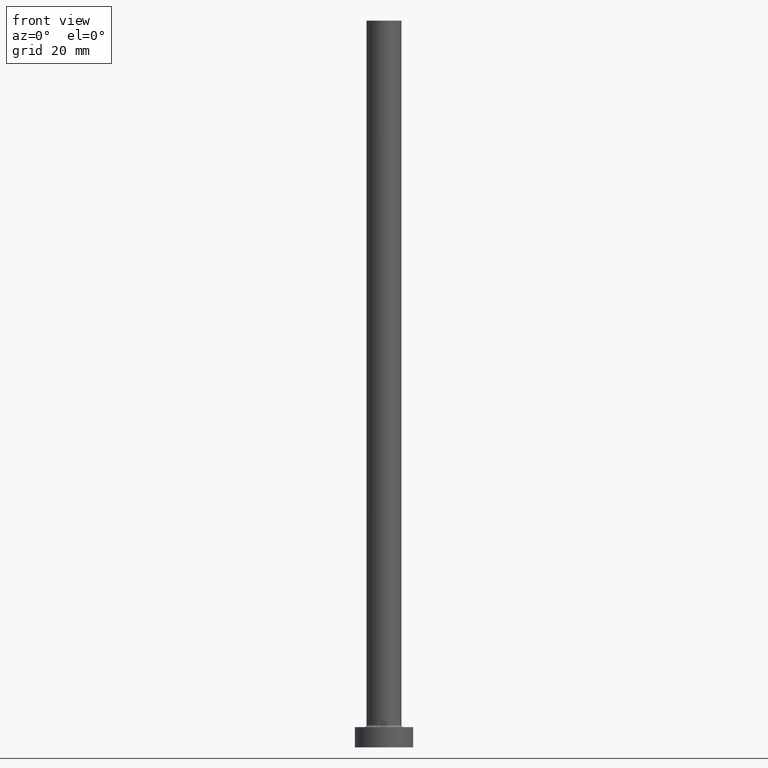
[diagram: clean part render]
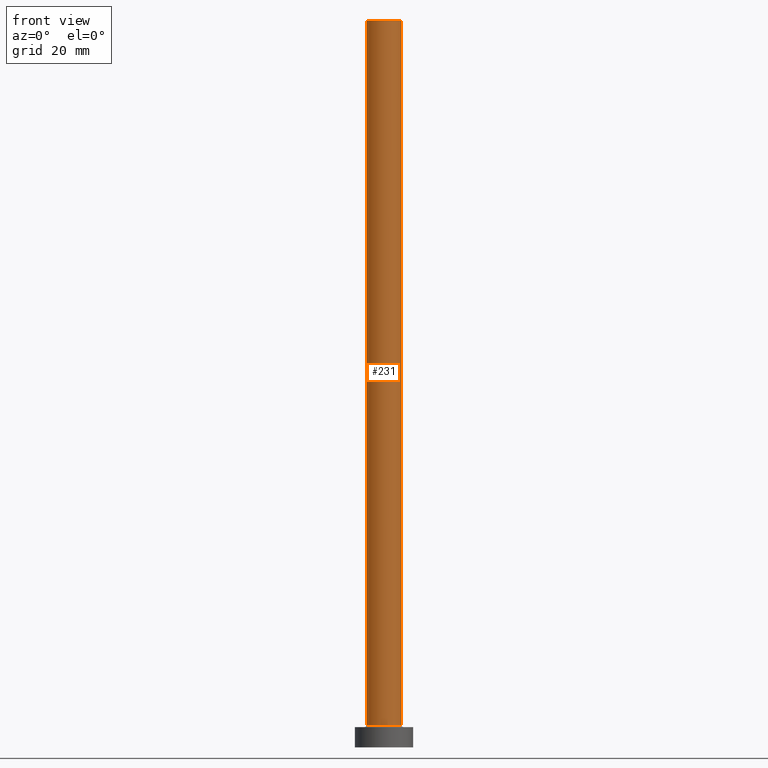
[diagram: same view with one face highlighted and labeled with its STEP entity id]
A machine part, front view. The second image highlights one B-rep face of the part: STEP entity #231.
In plain terms, the highlighted cylindrical surface (edge-blend (fillet) strip) has radius 6 mm, axis along (-0, -0, -1).
Its self-contained STEP definition (entity closure, byte-faithful):
#11 = CARTESIAN_POINT ( 'NONE',  ( 0.000000000000000000, 0.000000000000000000, 250.0000000000000000 ) ) ;
#25 = CIRCLE ( 'NONE', #57, 6.000000000000000888 ) ;
#41 = VERTEX_POINT ( 'NONE', #461 ) ;
#53 = DIRECTION ( 'NONE',  ( 0.000000000000000000, 0.000000000000000000, 1.000000000000000000 ) ) ;
#57 = AXIS2_PLACEMENT_3D ( 'NONE', #241, #280, #198 ) ;
#58 = VECTOR ( 'NONE', #222, 1000.000000000000000 ) ;
#76 = VERTEX_POINT ( 'NONE', #342 ) ;
#83 = ORIENTED_EDGE ( 'NONE', *, *, #169, .T. ) ;
#106 = EDGE_CURVE ( 'NONE', #41, #422, #324, .T. ) ;
#114 = CARTESIAN_POINT ( 'NONE',  ( 6.000000000000000888, 7.347880794884120722E-16, 250.0000000000000000 ) ) ;
#130 = EDGE_CURVE ( 'NONE', #41, #263, #375, .T. ) ;
#132 = AXIS2_PLACEMENT_3D ( 'NONE', #371, #53, #335 ) ;
#142 = CARTESIAN_POINT ( 'NONE',  ( 6.000000000000000888, 7.347880794884120722E-16, 250.0000000000000000 ) ) ;
#169 = EDGE_CURVE ( 'NONE', #263, #76, #25, .T. ) ;
#188 = CYLINDRICAL_SURFACE ( 'NONE', #197, 6.000000000000000888 ) ;
#197 = AXIS2_PLACEMENT_3D ( 'NONE', #11, #205, #203 ) ;
#198 = DIRECTION ( 'NONE',  ( 1.000000000000000000, 0.000000000000000000, 0.000000000000000000 ) ) ;
#199 = CARTESIAN_POINT ( 'NONE',  ( -6.000000000000000888, 0.000000000000000000, 250.0000000000000000 ) ) ;
#203 = DIRECTION ( 'NONE',  ( -1.000000000000000000, 0.000000000000000000, 0.000000000000000000 ) ) ;
#205 = DIRECTION ( 'NONE',  ( -0.000000000000000000, -0.000000000000000000, -1.000000000000000000 ) ) ;
#222 = DIRECTION ( 'NONE',  ( -0.000000000000000000, -0.000000000000000000, -1.000000000000000000 ) ) ;
#231 = ADVANCED_FACE ( 'NONE', ( #412 ), #188, .T. ) ;
#241 = CARTESIAN_POINT ( 'NONE',  ( 0.000000000000000000, 0.000000000000000000, 7.700000000000012612 ) ) ;
#263 = VERTEX_POINT ( 'NONE', #370 ) ;
#280 = DIRECTION ( 'NONE',  ( 0.000000000000000000, 0.000000000000000000, 1.000000000000000000 ) ) ;
#321 = ORIENTED_EDGE ( 'NONE', *, *, #403, .F. ) ;
#324 = CIRCLE ( 'NONE', #132, 6.000000000000000888 ) ;
#335 = DIRECTION ( 'NONE',  ( 1.000000000000000000, 0.000000000000000000, 0.000000000000000000 ) ) ;
#337 = DIRECTION ( 'NONE',  ( -0.000000000000000000, -0.000000000000000000, -1.000000000000000000 ) ) ;
#342 = CARTESIAN_POINT ( 'NONE',  ( 6.000000000000000888, 7.347880794884120722E-16, 7.700000000000012612 ) ) ;
#358 = LINE ( 'NONE', #114, #58 ) ;
#370 = CARTESIAN_POINT ( 'NONE',  ( -6.000000000000000888, 0.000000000000000000, 7.700000000000012612 ) ) ;
#371 = CARTESIAN_POINT ( 'NONE',  ( 0.000000000000000000, 0.000000000000000000, 250.0000000000000000 ) ) ;
#375 = LINE ( 'NONE', #199, #421 ) ;
#387 = EDGE_LOOP ( 'NONE', ( #321, #414, #437, #83 ) ) ;
#403 = EDGE_CURVE ( 'NONE', #422, #76, #358, .T. ) ;
#412 = FACE_OUTER_BOUND ( 'NONE', #387, .T. ) ;
#414 = ORIENTED_EDGE ( 'NONE', *, *, #106, .F. ) ;
#421 = VECTOR ( 'NONE', #337, 1000.000000000000000 ) ;
#422 = VERTEX_POINT ( 'NONE', #142 ) ;
#437 = ORIENTED_EDGE ( 'NONE', *, *, #130, .T. ) ;
#461 = CARTESIAN_POINT ( 'NONE',  ( -6.000000000000000888, 0.000000000000000000, 250.0000000000000000 ) ) ;